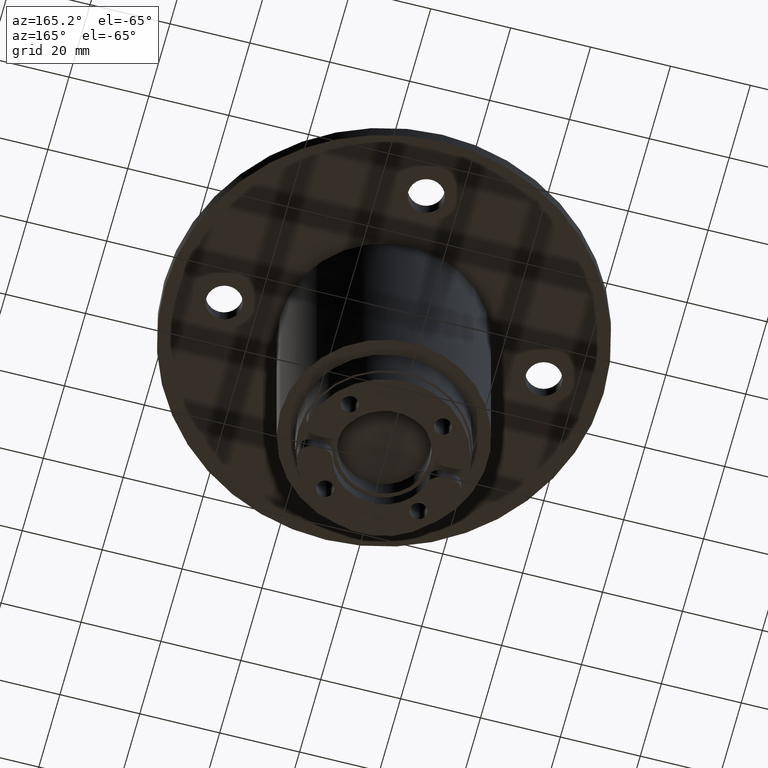
[diagram: clean part render]
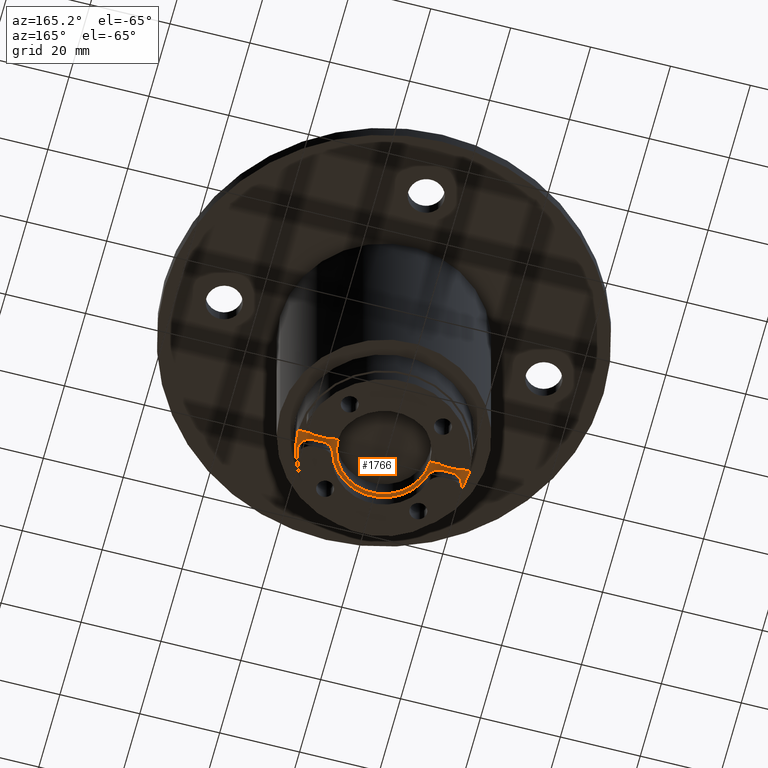
[diagram: same view with one face highlighted and labeled with its STEP entity id]
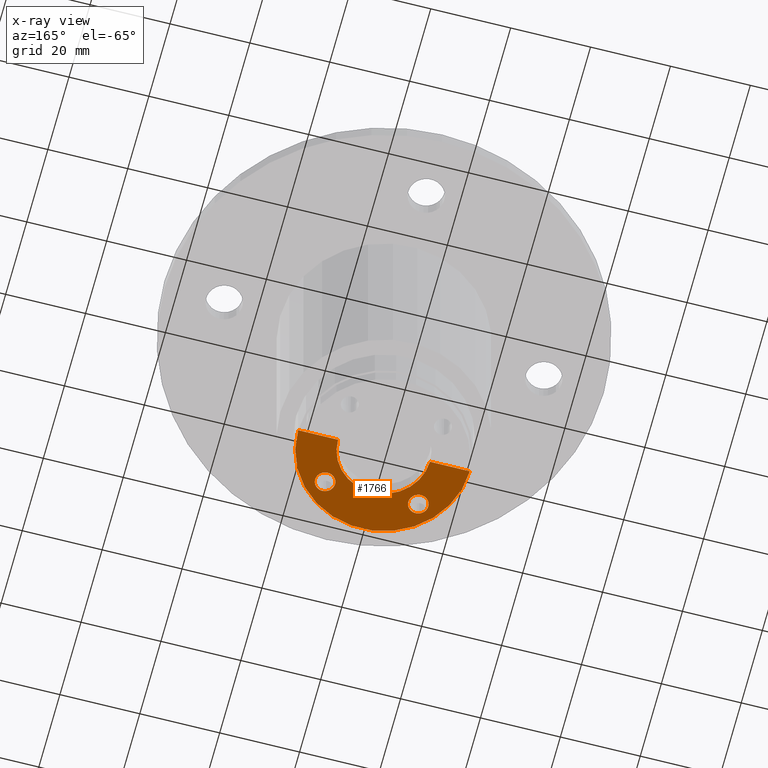
[diagram: x-ray of the same camera — body ghosted, the highlighted face saturated]
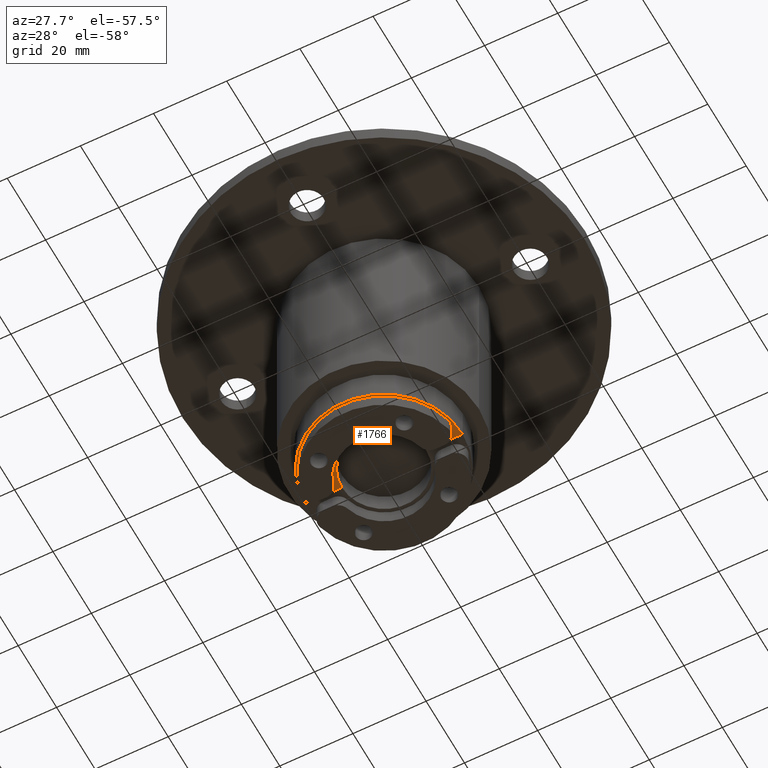
[diagram: same view with one face highlighted and labeled with its STEP entity id]
A machine part, auxiliary view. The second image highlights one B-rep face of the part: STEP entity #1766.
The next image is the same camera in x-ray: the body ghosted, the highlighted face saturated — about 0% of this face is hidden behind the body in this view.
A second angle (auxiliary view) of the same face is appended — the face is thin or edge-on in the first view.
In plain terms, the highlighted planar face has unit normal (0, -0, 1).
Its self-contained STEP definition (entity closure, byte-faithful):
#1668=CARTESIAN_POINT('',(13.029990801024327,10.774967784357337,-36.5));
#1669=VERTEX_POINT('',#1668);
#1670=CARTESIAN_POINT('',(10.529990801024327,10.774967784357337,-36.5));
#1671=DIRECTION('',(0.0,0.0,1.0));
#1672=DIRECTION('',(-1.0,0.0,0.0));
#1673=AXIS2_PLACEMENT_3D('',#1670,#1671,#1672);
#1674=CIRCLE('',#1673,2.5);
#1675=EDGE_CURVE('',#1669,#1669,#1674,.T.);
#1696=CARTESIAN_POINT('',(36.364514580180412,10.774967784357353,-36.5));
#1697=VERTEX_POINT('',#1696);
#1698=CARTESIAN_POINT('',(33.864514580180412,10.774967784357353,-36.5));
#1699=DIRECTION('',(0.0,0.0,1.0));
#1700=DIRECTION('',(-1.0,0.0,0.0));
#1701=AXIS2_PLACEMENT_3D('',#1698,#1699,#1700);
#1702=CIRCLE('',#1701,2.5);
#1703=EDGE_CURVE('',#1697,#1697,#1702,.T.);
#1719=CARTESIAN_POINT('',(22.197252690602397,13.319859345137342,-36.5));
#1720=DIRECTION('',(0.0,0.0,1.0));
#1721=DIRECTION('',(1.0,0.0,0.0));
#1722=AXIS2_PLACEMENT_3D('',#1719,#1720,#1721);
#1723=PLANE('',#1722);
#1724=CARTESIAN_POINT('',(43.697252690602397,22.442229673935365,-36.5));
#1725=VERTEX_POINT('',#1724);
#1726=CARTESIAN_POINT('',(0.697252690602397,22.442229673935369,-36.5));
#1727=VERTEX_POINT('',#1726);
#1728=CARTESIAN_POINT('',(22.197252690602397,22.442229673935365,-36.5));
#1729=DIRECTION('',(0.0,0.0,-1.0));
#1730=DIRECTION('',(-1.0,0.0,0.0));
#1731=AXIS2_PLACEMENT_3D('',#1728,#1729,#1730);
#1732=CIRCLE('',#1731,21.5);
#1733=EDGE_CURVE('',#1725,#1727,#1732,.T.);
#1734=ORIENTED_EDGE('',*,*,#1733,.T.);
#1735=CARTESIAN_POINT('',(10.697252690602397,22.442229673935365,-36.5));
#1736=VERTEX_POINT('',#1735);
#1737=CARTESIAN_POINT('',(0.697252690602397,22.442229673935369,-36.5));
#1738=DIRECTION('',(1.0,0.0,0.0));
#1739=VECTOR('',#1738,10.0);
#1740=LINE('',#1737,#1739);
#1741=EDGE_CURVE('',#1727,#1736,#1740,.T.);
#1742=ORIENTED_EDGE('',*,*,#1741,.T.);
#1743=CARTESIAN_POINT('',(33.697252690602397,22.442229673935365,-36.5));
#1744=VERTEX_POINT('',#1743);
#1745=CARTESIAN_POINT('',(22.197252690602397,22.442229673935365,-36.5));
#1746=DIRECTION('',(0.0,0.0,1.0));
#1747=DIRECTION('',(1.0,0.0,0.0));
#1748=AXIS2_PLACEMENT_3D('',#1745,#1746,#1747);
#1749=CIRCLE('',#1748,11.500000000000002);
#1750=EDGE_CURVE('',#1736,#1744,#1749,.T.);
#1751=ORIENTED_EDGE('',*,*,#1750,.T.);
#1752=CARTESIAN_POINT('',(33.697252690602397,22.442229673935365,-36.5));
#1753=DIRECTION('',(1.0,0.0,0.0));
#1754=VECTOR('',#1753,10.0);
#1755=LINE('',#1752,#1754);
#1756=EDGE_CURVE('',#1744,#1725,#1755,.T.);
#1757=ORIENTED_EDGE('',*,*,#1756,.T.);
#1758=EDGE_LOOP('',(#1734,#1742,#1751,#1757));
#1759=FACE_OUTER_BOUND('',#1758,.T.);
#1760=ORIENTED_EDGE('',*,*,#1675,.T.);
#1761=EDGE_LOOP('',(#1760));
#1762=FACE_BOUND('',#1761,.T.);
#1763=ORIENTED_EDGE('',*,*,#1703,.T.);
#1764=EDGE_LOOP('',(#1763));
#1765=FACE_BOUND('',#1764,.T.);
#1766=ADVANCED_FACE('',(#1759,#1762,#1765),#1723,.F.);